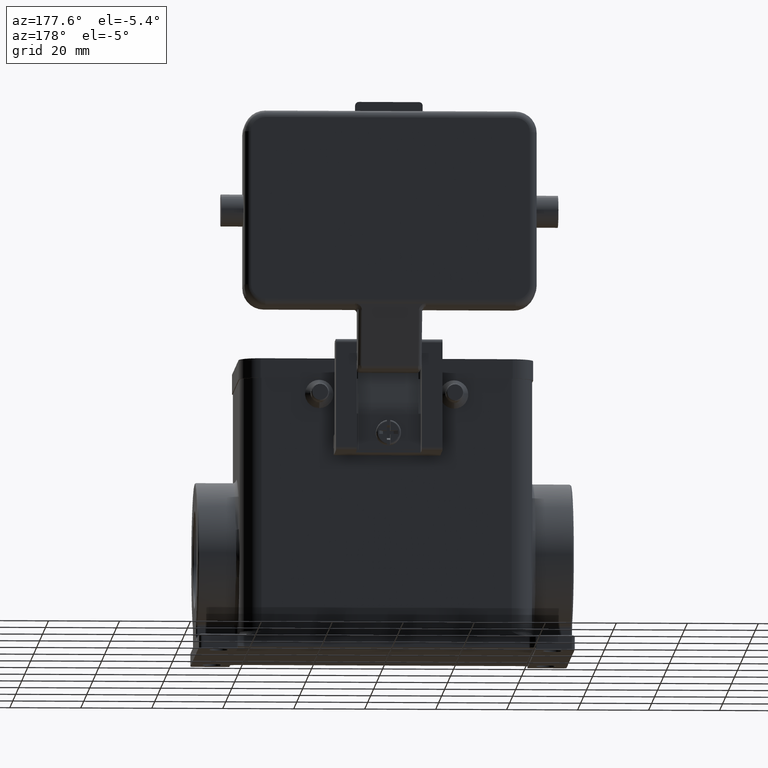
[diagram: clean part render]
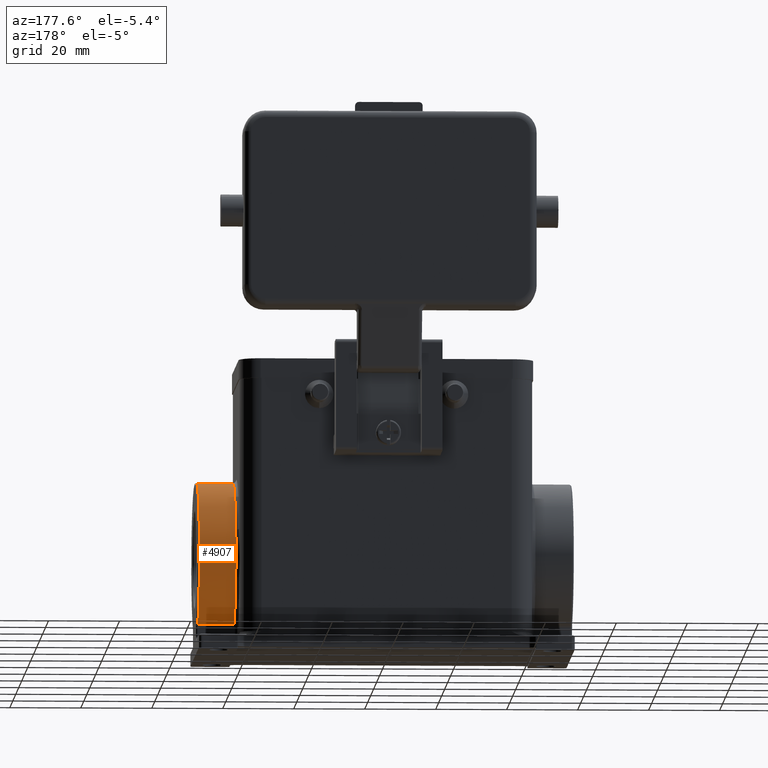
[diagram: same view with one face highlighted and labeled with its STEP entity id]
A machine part, auxiliary view. The second image highlights one B-rep face of the part: STEP entity #4907.
In plain terms, the highlighted cylindrical surface (partial cylindrical patch) has radius 21.75 mm, axis along (-1, 0, 0).
Its self-contained STEP definition (entity closure, byte-faithful):
#4824=CARTESIAN_POINT('',(53.000000000000007,0.0,-25.000000000000007));
#4825=DIRECTION('',(-1.0,0.0,0.0));
#4826=DIRECTION('',(0.0,-0.459770114942529,0.888037972952584));
#4827=AXIS2_PLACEMENT_3D('',#4824,#4825,#4826);
#4828=CYLINDRICAL_SURFACE('',#4827,21.750000000000000);
#4829=CARTESIAN_POINT('',(52.500000000000000,-9.999999999999998,-5.685174088281308));
#4830=VERTEX_POINT('',#4829);
#4831=CARTESIAN_POINT('',(42.250000000000000,-9.999999999999998,-5.685174088281308));
#4832=VERTEX_POINT('',#4831);
#4833=CARTESIAN_POINT('',(52.500000000000000,-9.999999999999998,-5.685174088281308));
#4834=DIRECTION('',(-1.0,0.0,0.0));
#4835=VECTOR('',#4834,10.250000000000000);
#4836=LINE('',#4833,#4835);
#4837=EDGE_CURVE('',#4830,#4832,#4836,.T.);
#4838=ORIENTED_EDGE('',*,*,#4837,.F.);
#4839=CARTESIAN_POINT('',(52.500000000000000,-2.663519E-015,-3.250000000000007));
#4840=VERTEX_POINT('',#4839);
#4841=CARTESIAN_POINT('',(52.500000000000000,0.0,-25.000000000000007));
#4842=DIRECTION('',(1.0,0.0,0.0));
#4843=DIRECTION('',(0.0,0.0,1.0));
#4844=AXIS2_PLACEMENT_3D('',#4841,#4842,#4843);
#4845=CIRCLE('',#4844,21.750000000000000);
#4846=EDGE_CURVE('',#4840,#4830,#4845,.T.);
#4847=ORIENTED_EDGE('',*,*,#4846,.F.);
#4848=CARTESIAN_POINT('',(52.500000000000000,10.516483516483516,-44.038541815158290));
#4849=VERTEX_POINT('',#4848);
#4850=CARTESIAN_POINT('',(52.500000000000000,0.0,-25.000000000000007));
#4851=DIRECTION('',(1.0,0.0,0.0));
#4852=DIRECTION('',(0.0,0.0,1.0));
#4853=AXIS2_PLACEMENT_3D('',#4850,#4851,#4852);
#4854=CIRCLE('',#4853,21.750000000000000);
#4855=EDGE_CURVE('',#4849,#4840,#4854,.T.);
#4856=ORIENTED_EDGE('',*,*,#4855,.F.);
#4857=CARTESIAN_POINT('',(42.250000000000007,10.516483516483516,-44.038541815158290));
#4858=VERTEX_POINT('',#4857);
#4859=CARTESIAN_POINT('',(42.250000000000007,10.516483516483516,-44.038541815158290));
#4860=DIRECTION('',(1.0,0.0,0.0));
#4861=VECTOR('',#4860,10.249999999999993);
#4862=LINE('',#4859,#4861);
#4863=EDGE_CURVE('',#4858,#4849,#4862,.T.);
#4864=ORIENTED_EDGE('',*,*,#4863,.F.);
#4865=CARTESIAN_POINT('',(42.250000000000000,20.698351648201832,-31.681372542178785));
#4866=VERTEX_POINT('',#4865);
#4867=CARTESIAN_POINT('',(42.250000000000007,0.0,-25.000000000000007));
#4868=DIRECTION('',(-1.0,-1.440052E-016,9.455961E-017));
#4869=DIRECTION('',(-1.722760E-016,0.835898238160535,-0.548884446345598));
#4870=AXIS2_PLACEMENT_3D('',#4867,#4868,#4869);
#4871=CIRCLE('',#4870,21.749999999999996);
#4872=EDGE_CURVE('',#4866,#4858,#4871,.T.);
#4873=ORIENTED_EDGE('',*,*,#4872,.F.);
#4874=CARTESIAN_POINT('',(42.250000000000007,20.698351648351672,-18.318627458285420));
#4875=VERTEX_POINT('',#4874);
#4876=CARTESIAN_POINT('',(42.250000000000000,20.698351648351672,-18.318627458285420));
#4877=CARTESIAN_POINT('',(42.250000000000000,20.871481845199007,-18.854970802848399));
#4878=CARTESIAN_POINT('',(42.243054690615693,21.024183033833488,-19.399440523141617));
#4879=CARTESIAN_POINT('',(42.218592708344048,21.365716023864820,-20.830110571717263));
#4880=CARTESIAN_POINT('',(42.197680630376865,21.521120062736149,-21.725379443399081));
#4881=CARTESIAN_POINT('',(42.160311314989258,21.778082060807403,-24.064629471039002));
#4882=CARTESIAN_POINT('',(42.157212301855836,21.792417381448455,-25.513573506299899));
#4883=CARTESIAN_POINT('',(42.199230832451271,21.516185683631196,-28.565660586151051));
#4884=CARTESIAN_POINT('',(42.250000000011511,21.190041407282429,-30.158157443630941));
#4885=CARTESIAN_POINT('',(42.250000000000000,20.698351648201836,-31.681372542178785));
#4886=B_SPLINE_CURVE_WITH_KNOTS('',3,(#4876,#4877,#4878,#4879,#4880,#4881,#4882,#4883,#4884,#4885),.UNSPECIFIED.,.F.,.U.,(4,2,2,2,4),(-6.747601E-018,0.176851924676517,0.459815004158944,0.912555931330827,1.414815397412136),.UNSPECIFIED.);
#4887=EDGE_CURVE('',#4875,#4866,#4886,.T.);
#4888=ORIENTED_EDGE('',*,*,#4887,.F.);
#4889=CARTESIAN_POINT('',(42.250000000000007,-2.663519E-015,-3.250000000000007));
#4890=VERTEX_POINT('',#4889);
#4891=CARTESIAN_POINT('',(42.250000000000007,0.0,-25.000000000000007));
#4892=DIRECTION('',(-1.0,0.0,0.0));
#4893=DIRECTION('',(0.0,0.0,1.0));
#4894=AXIS2_PLACEMENT_3D('',#4891,#4892,#4893);
#4895=CIRCLE('',#4894,21.750000000000000);
#4896=EDGE_CURVE('',#4890,#4875,#4895,.T.);
#4897=ORIENTED_EDGE('',*,*,#4896,.F.);
#4898=CARTESIAN_POINT('',(42.250000000000007,0.0,-25.000000000000007));
#4899=DIRECTION('',(-1.0,0.0,0.0));
#4900=DIRECTION('',(0.0,0.0,1.0));
#4901=AXIS2_PLACEMENT_3D('',#4898,#4899,#4900);
#4902=CIRCLE('',#4901,21.750000000000000);
#4903=EDGE_CURVE('',#4832,#4890,#4902,.T.);
#4904=ORIENTED_EDGE('',*,*,#4903,.F.);
#4905=EDGE_LOOP('',(#4838,#4847,#4856,#4864,#4873,#4888,#4897,#4904));
#4906=FACE_OUTER_BOUND('',#4905,.T.);
#4907=ADVANCED_FACE('',(#4906),#4828,.T.);